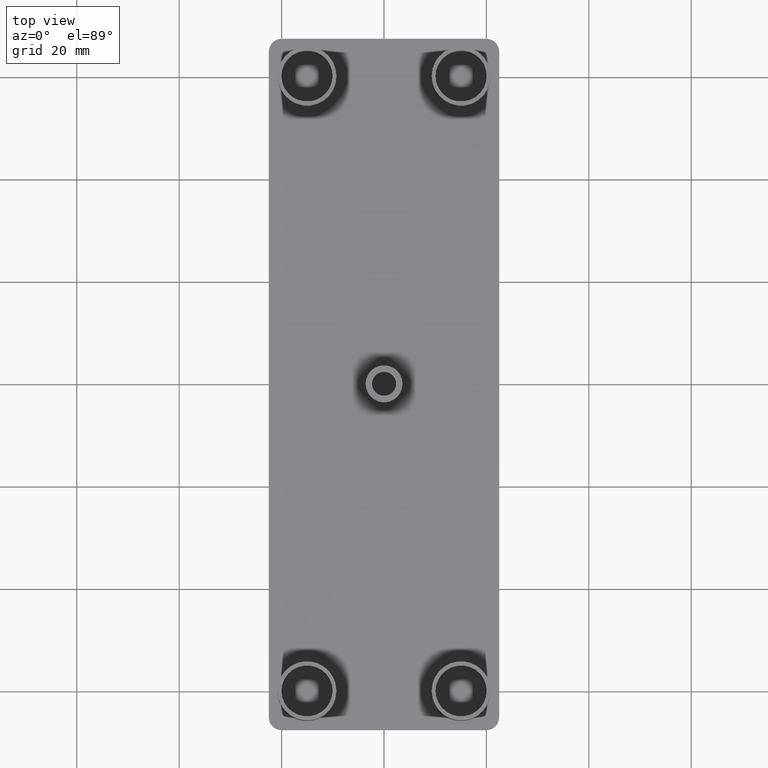
[diagram: clean part render]
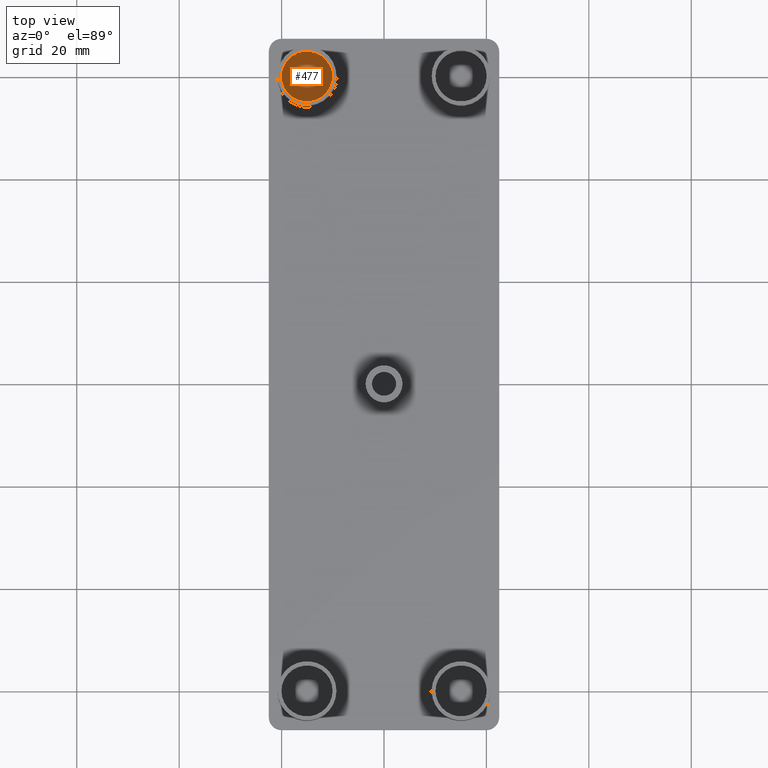
[diagram: same view with one face highlighted and labeled with its STEP entity id]
A machine part, top view. The second image highlights one B-rep face of the part: STEP entity #477.
In plain terms, the highlighted planar face has unit normal (0, 0, 1).
Its self-contained STEP definition (entity closure, byte-faithful):
#452=CARTESIAN_POINT('',(-26.999956730030135,-81.000005329483884,0.0));
#453=DIRECTION('',(0.0,0.0,1.0));
#454=DIRECTION('',(1.0,0.0,0.0));
#455=AXIS2_PLACEMENT_3D('',#452,#453,#454);
#456=PLANE('',#455);
#457=CARTESIAN_POINT('',(-20.050000333254513,60.050045499759563,0.0));
#458=VERTEX_POINT('',#457);
#459=CARTESIAN_POINT('',(-10.050000333294520,60.050045499759563,0.0));
#460=VERTEX_POINT('',#459);
#461=CARTESIAN_POINT('',(-15.050000333274511,60.050045499759563,0.0));
#462=DIRECTION('',(0.0,0.0,-1.0));
#463=DIRECTION('',(1.0,0.0,0.0));
#464=AXIS2_PLACEMENT_3D('',#461,#462,#463);
#465=CIRCLE('',#464,4.999999999980001);
#466=EDGE_CURVE('',#458,#460,#465,.T.);
#467=ORIENTED_EDGE('',*,*,#466,.F.);
#468=CARTESIAN_POINT('',(-15.050000333274511,60.050045499759563,0.0));
#469=DIRECTION('',(0.0,0.0,-1.0));
#470=DIRECTION('',(1.0,0.0,0.0));
#471=AXIS2_PLACEMENT_3D('',#468,#469,#470);
#472=CIRCLE('',#471,4.999999999980001);
#473=EDGE_CURVE('',#460,#458,#472,.T.);
#474=ORIENTED_EDGE('',*,*,#473,.F.);
#475=EDGE_LOOP('',(#467,#474));
#476=FACE_OUTER_BOUND('',#475,.T.);
#477=ADVANCED_FACE('',(#476),#456,.T.);